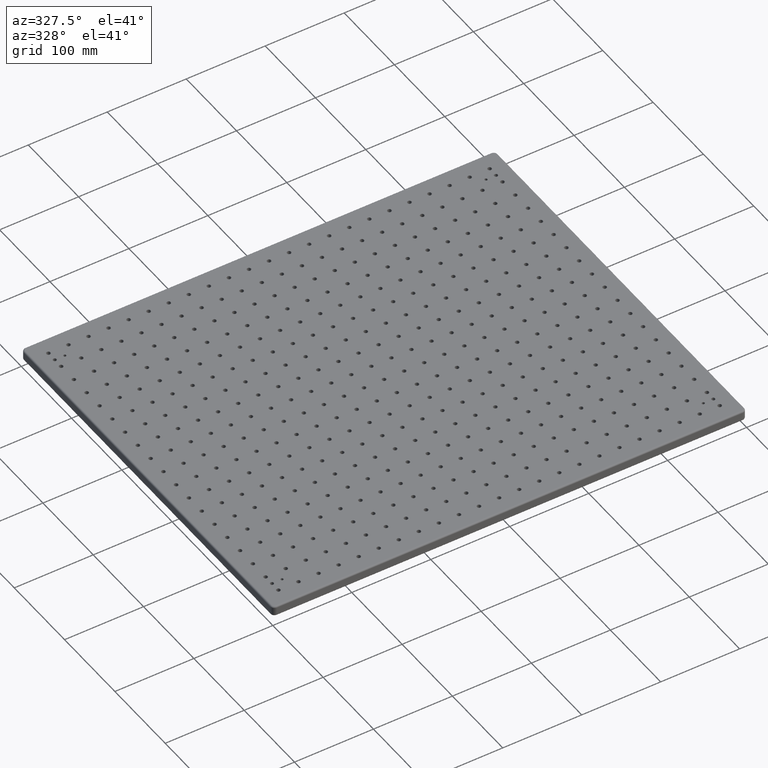
[diagram: clean part render]
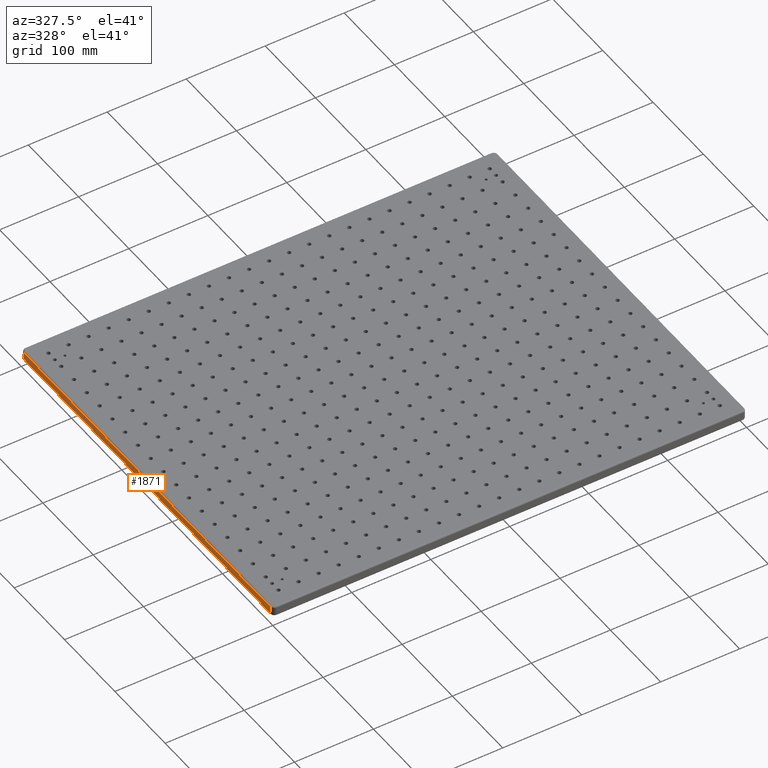
[diagram: same view with one face highlighted and labeled with its STEP entity id]
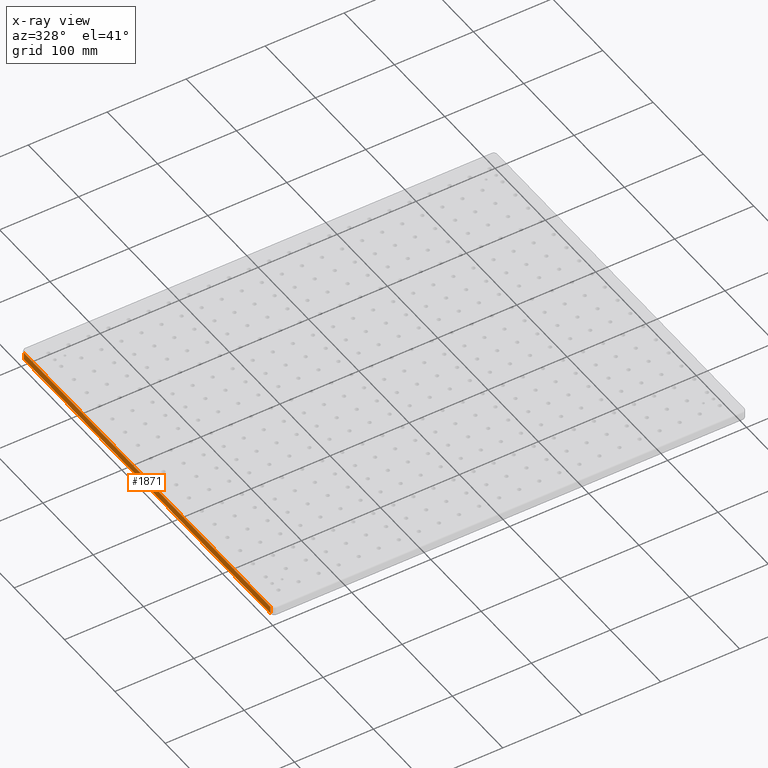
[diagram: x-ray of the same camera — body ghosted, the highlighted face saturated]
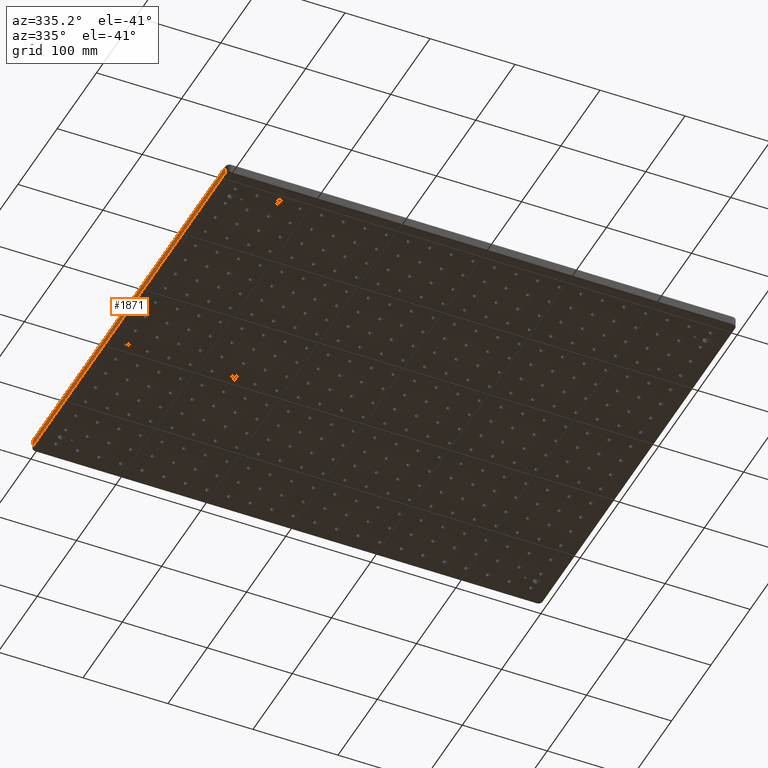
[diagram: same view with one face highlighted and labeled with its STEP entity id]
A machine part, auxiliary view. The second image highlights one B-rep face of the part: STEP entity #1871.
The next image is the same camera in x-ray: the body ghosted, the highlighted face saturated — about 0% of this face is hidden behind the body in this view.
A second angle (auxiliary view) of the same face is appended — the face is thin or edge-on in the first view.
In plain terms, the highlighted planar face has unit normal (-1, 0, 0).
Its self-contained STEP definition (entity closure, byte-faithful):
#642 = AXIS2_PLACEMENT_3D ( 'NONE', #19966, #32540, #9175 ) ;
#1707 = DIRECTION ( 'NONE',  ( -0.0000000000000000000, -0.0000000000000000000, -1.000000000000000000 ) ) ;
#1871 = ADVANCED_FACE ( 'NONE', ( #17030 ), #11708, .T. ) ;
#2579 = LINE ( 'NONE', #33148, #31259 ) ;
#4339 = CARTESIAN_POINT ( 'NONE',  ( 0.0000000000000000000, 495.0000000000000000, -13.00000000000000000 ) ) ;
#4673 = ORIENTED_EDGE ( 'NONE', *, *, #13816, .T. ) ;
#4822 = VERTEX_POINT ( 'NONE', #29496 ) ;
#8879 = ORIENTED_EDGE ( 'NONE', *, *, #20752, .T. ) ;
#9175 = DIRECTION ( 'NONE',  ( 0.0000000000000000000, 0.0000000000000000000, 1.000000000000000000 ) ) ;
#9177 = LINE ( 'NONE', #31566, #13279 ) ;
#11272 = VERTEX_POINT ( 'NONE', #29316 ) ;
#11627 = ORIENTED_EDGE ( 'NONE', *, *, #16895, .T. ) ;
#11708 = PLANE ( 'NONE',  #642 ) ;
#11961 = VERTEX_POINT ( 'NONE', #29728 ) ;
#12258 = DIRECTION ( 'NONE',  ( 0.0000000000000000000, 0.0000000000000000000, 1.000000000000000000 ) ) ;
#12324 = DIRECTION ( 'NONE',  ( 0.0000000000000000000, -1.000000000000000000, 0.0000000000000000000 ) ) ;
#13279 = VECTOR ( 'NONE', #29399, 1000.000000000000000 ) ;
#13816 = EDGE_CURVE ( 'NONE', #11272, #4822, #26507, .T. ) ;
#15103 = ORIENTED_EDGE ( 'NONE', *, *, #23647, .T. ) ;
#16895 = EDGE_CURVE ( 'NONE', #11961, #11272, #2579, .T. ) ;
#17030 = FACE_OUTER_BOUND ( 'NONE', #17846, .T. ) ;
#17846 = EDGE_LOOP ( 'NONE', ( #8879, #11627, #4673, #15103 ) ) ;
#19571 = VECTOR ( 'NONE', #12258, 1000.000000000000000 ) ;
#19966 = CARTESIAN_POINT ( 'NONE',  ( 0.0000000000000000000, 0.0000000000000000000, -13.00000000000000000 ) ) ;
#20752 = EDGE_CURVE ( 'NONE', #30953, #11961, #24339, .T. ) ;
#21509 = VECTOR ( 'NONE', #1707, 1000.000000000000000 ) ;
#23647 = EDGE_CURVE ( 'NONE', #4822, #30953, #9177, .T. ) ;
#24339 = LINE ( 'NONE', #4339, #21509 ) ;
#26507 = LINE ( 'NONE', #33079, #19571 ) ;
#29316 = CARTESIAN_POINT ( 'NONE',  ( 0.0000000000000000000, 4.999999999999998200, -11.00000000000000000 ) ) ;
#29399 = DIRECTION ( 'NONE',  ( -0.0000000000000000000, 1.000000000000000000, -0.0000000000000000000 ) ) ;
#29440 = CARTESIAN_POINT ( 'NONE',  ( 0.0000000000000000000, 495.0000000000000000, -2.000000000000000000 ) ) ;
#29496 = CARTESIAN_POINT ( 'NONE',  ( 0.0000000000000000000, 4.999999999999998200, -2.000000000000000000 ) ) ;
#29728 = CARTESIAN_POINT ( 'NONE',  ( 0.0000000000000000000, 495.0000000000000000, -11.00000000000000000 ) ) ;
#30953 = VERTEX_POINT ( 'NONE', #29440 ) ;
#31259 = VECTOR ( 'NONE', #12324, 1000.000000000000000 ) ;
#31566 = CARTESIAN_POINT ( 'NONE',  ( 0.0000000000000000000, 495.0000000000000000, -2.000000000000000000 ) ) ;
#32540 = DIRECTION ( 'NONE',  ( -1.000000000000000000, 0.0000000000000000000, 0.0000000000000000000 ) ) ;
#33079 = CARTESIAN_POINT ( 'NONE',  ( 0.0000000000000000000, 4.999999999999998200, -13.00000000000000000 ) ) ;
#33148 = CARTESIAN_POINT ( 'NONE',  ( 0.0000000000000000000, 0.0000000000000000000, -11.00000000000000000 ) ) ;